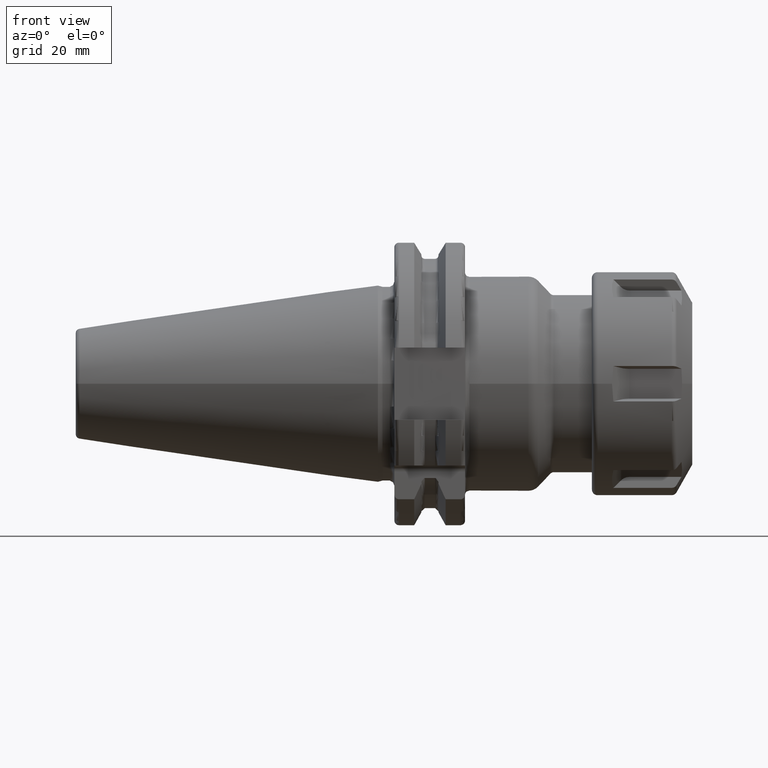
[diagram: clean part render]
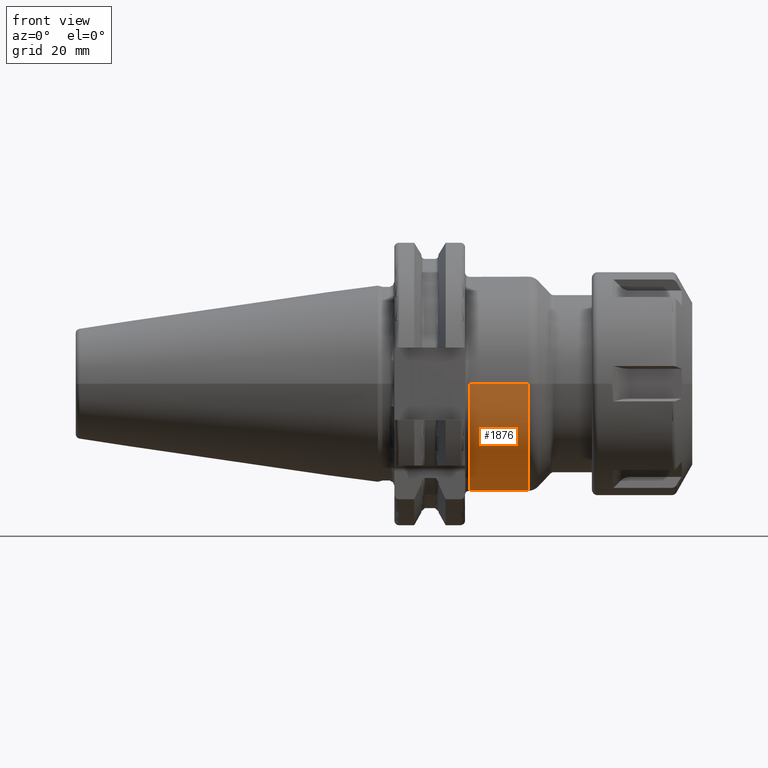
[diagram: same view with one face highlighted and labeled with its STEP entity id]
A machine part, front view. The second image highlights one B-rep face of the part: STEP entity #1876.
In plain terms, the highlighted cylindrical surface (partial cylindrical patch) has radius 24 mm, axis along (1, 0, 0).
Its self-contained STEP definition (entity closure, byte-faithful):
#130=CARTESIAN_POINT('',(1.905E1,0.E0,0.E0));
#131=DIRECTION('',(-1.E0,0.E0,0.E0));
#132=DIRECTION('',(0.E0,1.E0,0.E0));
#133=AXIS2_PLACEMENT_3D('',#130,#131,#132);
#168=CARTESIAN_POINT('',(3.325735931288E1,0.E0,0.E0));
#169=DIRECTION('',(-1.E0,0.E0,0.E0));
#170=DIRECTION('',(0.E0,1.E0,0.E0));
#171=AXIS2_PLACEMENT_3D('',#168,#169,#170);
#173=DIRECTION('',(-1.E0,0.E0,3.168897589390E-13));
#174=VECTOR('',#173,1.420735931288E1);
#175=CARTESIAN_POINT('',(3.325735931288E1,2.4E1,-4.500207232940E-12));
#176=LINE('',#175,#174);
#177=DIRECTION('',(-1.E0,0.E0,0.E0));
#178=VECTOR('',#177,1.E0);
#179=CARTESIAN_POINT('',(2.005E1,2.259181267628E1,-8.1E0));
#180=LINE('',#179,#178);
#181=CARTESIAN_POINT('',(2.005E1,0.E0,0.E0));
#182=DIRECTION('',(1.E0,0.E0,0.E0));
#183=DIRECTION('',(0.E0,-1.E0,0.E0));
#184=AXIS2_PLACEMENT_3D('',#181,#182,#183);
#186=DIRECTION('',(-9.999999999095E-1,1.494816000092E-10,-1.345693270884E-5));
#187=VECTOR('',#186,1.320735931408E1);
#188=CARTESIAN_POINT('',(3.325735931288E1,-2.4E1,4.499440850481E-12));
#189=LINE('',#188,#187);
#1528=CARTESIAN_POINT('',(2.005E1,-2.4E1,0.E0));
#1529=CARTESIAN_POINT('',(2.005E1,2.259181267628E1,-8.1E0));
#1530=VERTEX_POINT('',#1528);
#1531=VERTEX_POINT('',#1529);
#1538=CARTESIAN_POINT('',(3.325735931288E1,2.4E1,0.E0));
#1539=CARTESIAN_POINT('',(3.325735931288E1,-2.4E1,0.E0));
#1540=VERTEX_POINT('',#1538);
#1541=VERTEX_POINT('',#1539);
#1561=CARTESIAN_POINT('',(1.905E1,2.259181267628E1,-8.1E0));
#1562=VERTEX_POINT('',#1561);
#1563=CARTESIAN_POINT('',(1.905E1,2.4E1,0.E0));
#1564=VERTEX_POINT('',#1563);
#1861=CARTESIAN_POINT('',(1.71525E1,0.E0,0.E0));
#1862=DIRECTION('',(1.E0,0.E0,0.E0));
#1863=DIRECTION('',(0.E0,-1.E0,0.E0));
#1864=AXIS2_PLACEMENT_3D('',#1861,#1862,#1863);
#1865=CYLINDRICAL_SURFACE('',#1864,2.4E1);
#1866=ORIENTED_EDGE('',*,*,#1852,.F.);
#1867=ORIENTED_EDGE('',*,*,#1827,.T.);
#1868=ORIENTED_EDGE('',*,*,#1767,.T.);
#1870=ORIENTED_EDGE('',*,*,#1869,.F.);
#1872=ORIENTED_EDGE('',*,*,#1871,.F.);
#1873=ORIENTED_EDGE('',*,*,#1821,.F.);
#1874=EDGE_LOOP('',(#1866,#1867,#1868,#1870,#1872,#1873));
#1875=FACE_OUTER_BOUND('',#1874,.F.);
#1876=ADVANCED_FACE('',(#1875),#1865,.T.);
#134=CIRCLE('',#133,2.4E1);
#172=CIRCLE('',#171,2.4E1);
#185=CIRCLE('',#184,2.4E1);
#1767=EDGE_CURVE('',#1564,#1562,#134,.T.);
#1821=EDGE_CURVE('',#1541,#1530,#189,.T.);
#1827=EDGE_CURVE('',#1540,#1564,#176,.T.);
#1852=EDGE_CURVE('',#1540,#1541,#172,.T.);
#1869=EDGE_CURVE('',#1531,#1562,#180,.T.);
#1871=EDGE_CURVE('',#1530,#1531,#185,.T.);